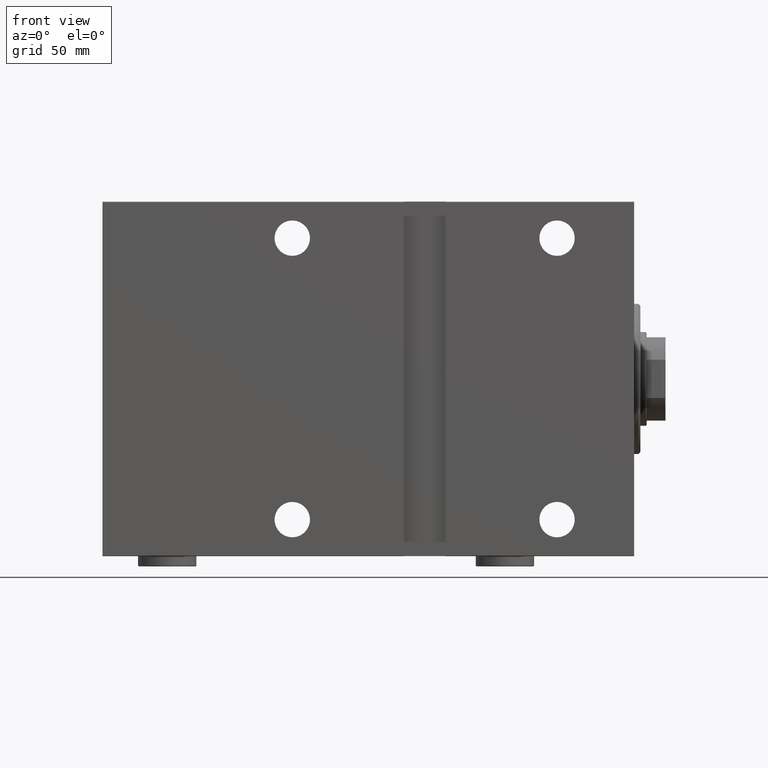
[diagram: clean part render]
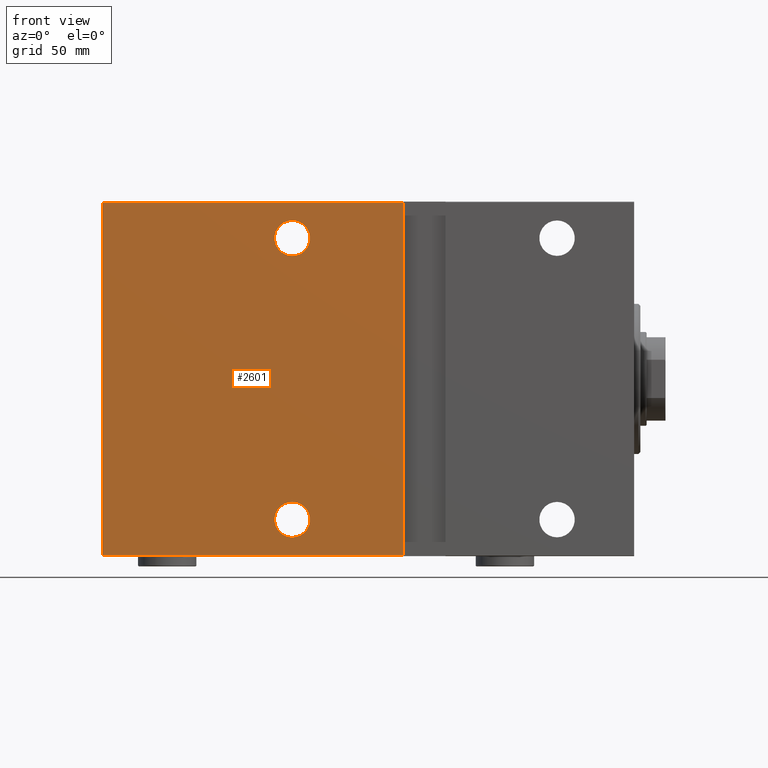
[diagram: same view with one face highlighted and labeled with its STEP entity id]
A machine part, front view. The second image highlights one B-rep face of the part: STEP entity #2601.
In plain terms, the highlighted planar face has unit normal (-0, 1, -0).
Its self-contained STEP definition (entity closure, byte-faithful):
#727 = ORIENTED_EDGE ( 'NONE', *, *, #18826, .T. ) ;
#795 = CARTESIAN_POINT ( 'NONE',  ( 163.9999999999999716, 69.99999999999998579, 58.99999999999997868 ) ) ;
#1129 = VERTEX_POINT ( 'NONE', #29154 ) ;
#2601 = ADVANCED_FACE ( 'NONE', ( #36286, #7436, #27938 ), #17235, .F. ) ;
#3203 = CARTESIAN_POINT ( 'NONE',  ( 163.9999999999999716, 69.99999999999998579, 67.49999999999998579 ) ) ;
#3323 = CARTESIAN_POINT ( 'NONE',  ( 255.0000000000000000, 70.00000000000001421, -85.00000000000000000 ) ) ;
#3544 = AXIS2_PLACEMENT_3D ( 'NONE', #30941, #44386, #12730 ) ;
#3706 = ORIENTED_EDGE ( 'NONE', *, *, #26595, .T. ) ;
#4645 = CARTESIAN_POINT ( 'NONE',  ( 255.0000000000000000, 70.00000000000001421, -84.70000000000004547 ) ) ;
#5674 = CARTESIAN_POINT ( 'NONE',  ( 110.4999999999999858, 70.00000000000001421, -84.99999999999997158 ) ) ;
#5757 = VECTOR ( 'NONE', #9696, 1000.000000000000000 ) ;
#5910 = CARTESIAN_POINT ( 'NONE',  ( 163.9999999999999716, 69.99999999999998579, 76.00000000000000000 ) ) ;
#7436 = FACE_BOUND ( 'NONE', #17755, .T. ) ;
#7738 = AXIS2_PLACEMENT_3D ( 'NONE', #21135, #39946, #8754 ) ;
#7936 = CIRCLE ( 'NONE', #19571, 8.500000000000014211 ) ;
#8249 = EDGE_LOOP ( 'NONE', ( #33554, #38384, #17350, #18101 ) ) ;
#8754 = DIRECTION ( 'NONE',  ( 0.000000000000000000, 0.000000000000000000, -1.000000000000000000 ) ) ;
#8903 = CARTESIAN_POINT ( 'NONE',  ( 255.0000000000000000, 69.99999999999998579, 84.70000000000007390 ) ) ;
#9696 = DIRECTION ( 'NONE',  ( -1.000000000000000000, 0.000000000000000000, 0.000000000000000000 ) ) ;
#10045 = EDGE_CURVE ( 'NONE', #22343, #1129, #37112, .T. ) ;
#12313 = DIRECTION ( 'NONE',  ( 1.000000000000000000, 0.000000000000000000, 0.000000000000000000 ) ) ;
#12531 = LINE ( 'NONE', #8903, #43369 ) ;
#12730 = DIRECTION ( 'NONE',  ( 0.000000000000000000, 0.000000000000000000, -1.000000000000000000 ) ) ;
#14367 = CARTESIAN_POINT ( 'NONE',  ( 163.9999999999999716, 70.00000000000001421, -76.00000000000002842 ) ) ;
#14848 = VECTOR ( 'NONE', #29595, 1000.000000000000000 ) ;
#17054 = DIRECTION ( 'NONE',  ( 0.000000000000000000, 0.000000000000000000, -1.000000000000000000 ) ) ;
#17235 = PLANE ( 'NONE',  #31418 ) ;
#17350 = ORIENTED_EDGE ( 'NONE', *, *, #18675, .F. ) ;
#17678 = CARTESIAN_POINT ( 'NONE',  ( 255.0000000000000000, 70.00000000000001421, -85.00000000000000000 ) ) ;
#17755 = EDGE_LOOP ( 'NONE', ( #3706, #22225 ) ) ;
#18101 = ORIENTED_EDGE ( 'NONE', *, *, #38935, .T. ) ;
#18675 = EDGE_CURVE ( 'NONE', #27732, #23819, #40958, .T. ) ;
#18826 = EDGE_CURVE ( 'NONE', #44825, #41689, #27373, .T. ) ;
#19571 = AXIS2_PLACEMENT_3D ( 'NONE', #3203, #24832, #24158 ) ;
#20460 = CARTESIAN_POINT ( 'NONE',  ( 110.4999999999999858, 70.00000000000001421, -84.70000000000004547 ) ) ;
#20475 = DIRECTION ( 'NONE',  ( 0.000000000000000000, -1.000000000000000000, -1.632680918566406300E-16 ) ) ;
#21135 = CARTESIAN_POINT ( 'NONE',  ( 163.9999999999999716, 70.00000000000001421, -67.50000000000001421 ) ) ;
#21322 = DIRECTION ( 'NONE',  ( 0.000000000000000000, -1.000000000000000000, -1.632680918566406300E-16 ) ) ;
#22225 = ORIENTED_EDGE ( 'NONE', *, *, #43891, .T. ) ;
#22343 = VERTEX_POINT ( 'NONE', #4645 ) ;
#23649 = DIRECTION ( 'NONE',  ( -0.000000000000000000, 1.632680918566406793E-16, -1.000000000000000000 ) ) ;
#23819 = VERTEX_POINT ( 'NONE', #20460 ) ;
#23926 = EDGE_CURVE ( 'NONE', #41689, #44825, #42822, .T. ) ;
#24158 = DIRECTION ( 'NONE',  ( 0.000000000000000000, 0.000000000000000000, -1.000000000000000000 ) ) ;
#24832 = DIRECTION ( 'NONE',  ( 0.000000000000000000, -1.000000000000000000, -1.632680918566406300E-16 ) ) ;
#25766 = EDGE_CURVE ( 'NONE', #22343, #23819, #30872, .T. ) ;
#26595 = EDGE_CURVE ( 'NONE', #40944, #31264, #7936, .T. ) ;
#26939 = CARTESIAN_POINT ( 'NONE',  ( 163.9999999999999716, 70.00000000000001421, -59.00000000000000711 ) ) ;
#27373 = CIRCLE ( 'NONE', #7738, 8.500000000000007105 ) ;
#27732 = VERTEX_POINT ( 'NONE', #41866 ) ;
#27938 = FACE_OUTER_BOUND ( 'NONE', #8249, .T. ) ;
#29154 = CARTESIAN_POINT ( 'NONE',  ( 255.0000000000000000, 69.99999999999998579, 84.70000000000007390 ) ) ;
#29595 = DIRECTION ( 'NONE',  ( 0.000000000000000000, -1.632680918566406300E-16, 1.000000000000000000 ) ) ;
#30872 = LINE ( 'NONE', #34527, #5757 ) ;
#30941 = CARTESIAN_POINT ( 'NONE',  ( 163.9999999999999716, 70.00000000000001421, -67.50000000000001421 ) ) ;
#31138 = DIRECTION ( 'NONE',  ( 0.000000000000000000, 1.632680918566406300E-16, -1.000000000000000000 ) ) ;
#31264 = VERTEX_POINT ( 'NONE', #795 ) ;
#31418 = AXIS2_PLACEMENT_3D ( 'NONE', #17678, #21322, #31138 ) ;
#32575 = CIRCLE ( 'NONE', #40577, 8.500000000000014211 ) ;
#33554 = ORIENTED_EDGE ( 'NONE', *, *, #10045, .F. ) ;
#34527 = CARTESIAN_POINT ( 'NONE',  ( 255.0000000000000000, 70.00000000000001421, -84.70000000000004547 ) ) ;
#36286 = FACE_BOUND ( 'NONE', #42134, .T. ) ;
#37112 = LINE ( 'NONE', #3323, #14848 ) ;
#37796 = CARTESIAN_POINT ( 'NONE',  ( 163.9999999999999716, 69.99999999999998579, 67.49999999999998579 ) ) ;
#38265 = VECTOR ( 'NONE', #23649, 1000.000000000000000 ) ;
#38384 = ORIENTED_EDGE ( 'NONE', *, *, #25766, .T. ) ;
#38935 = EDGE_CURVE ( 'NONE', #27732, #1129, #12531, .T. ) ;
#39946 = DIRECTION ( 'NONE',  ( 0.000000000000000000, -1.000000000000000000, -1.632680918566406300E-16 ) ) ;
#40577 = AXIS2_PLACEMENT_3D ( 'NONE', #37796, #20475, #17054 ) ;
#40944 = VERTEX_POINT ( 'NONE', #5910 ) ;
#40958 = LINE ( 'NONE', #5674, #38265 ) ;
#41002 = ORIENTED_EDGE ( 'NONE', *, *, #23926, .T. ) ;
#41689 = VERTEX_POINT ( 'NONE', #14367 ) ;
#41866 = CARTESIAN_POINT ( 'NONE',  ( 110.4999999999999858, 69.99999999999998579, 84.70000000000007390 ) ) ;
#42134 = EDGE_LOOP ( 'NONE', ( #727, #41002 ) ) ;
#42822 = CIRCLE ( 'NONE', #3544, 8.500000000000007105 ) ;
#43369 = VECTOR ( 'NONE', #12313, 1000.000000000000000 ) ;
#43891 = EDGE_CURVE ( 'NONE', #31264, #40944, #32575, .T. ) ;
#44386 = DIRECTION ( 'NONE',  ( 0.000000000000000000, -1.000000000000000000, -1.632680918566406300E-16 ) ) ;
#44825 = VERTEX_POINT ( 'NONE', #26939 ) ;